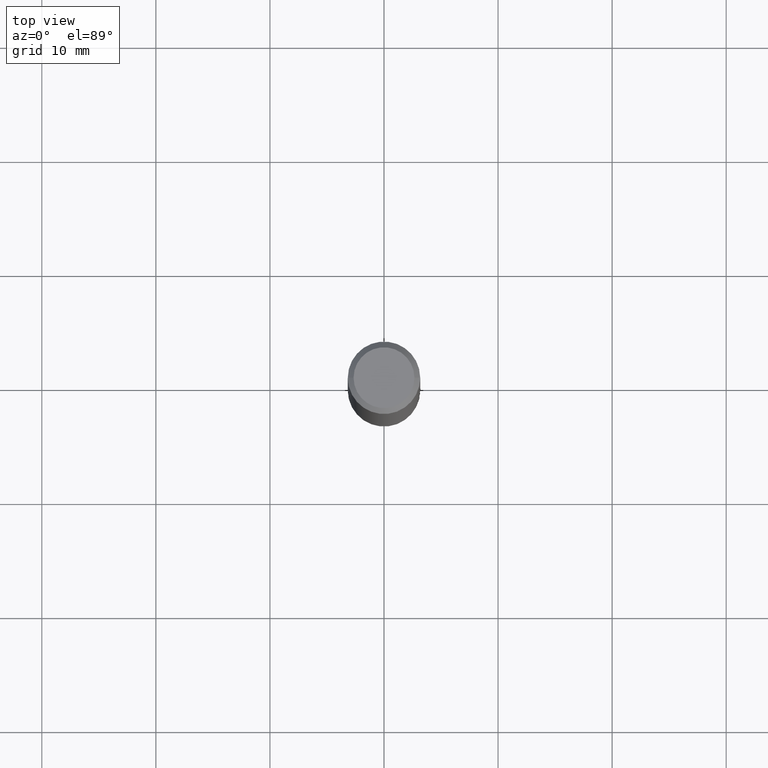
[diagram: clean part render]
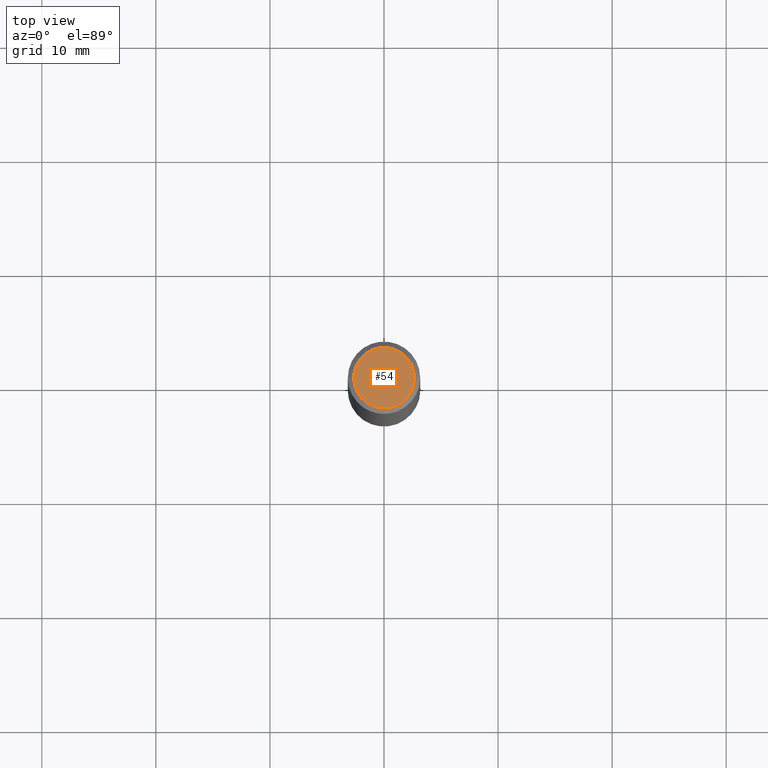
[diagram: same view with one face highlighted and labeled with its STEP entity id]
A machine part, top view. The second image highlights one B-rep face of the part: STEP entity #54.
In plain terms, the highlighted planar face has unit normal (0, -0, -1).
Its self-contained STEP definition (entity closure, byte-faithful):
#8 = DIRECTION ( 'NONE',  ( 1.000000000000000000, -6.982962677686265922E-15, 4.876176775795935793E-29 ) ) ;
#10 = CIRCLE ( 'NONE', #334, 0.1049999999999997324 ) ;
#15 = DIRECTION ( 'NONE',  ( 2.438088387897960049E-29, -3.491481338843145188E-15, -1.000000000000000000 ) ) ;
#23 = ORIENTED_EDGE ( 'NONE', *, *, #268, .T. ) ;
#32 = CARTESIAN_POINT ( 'NONE',  ( 0.000000000000000000, 0.000000000000000000, 0.000000000000000000 ) ) ;
#54 = ADVANCED_FACE ( 'NONE', ( #270 ), #345, .F. ) ;
#64 = VERTEX_POINT ( 'NONE', #340 ) ;
#68 = CIRCLE ( 'NONE', #266, 0.1049999999999997324 ) ;
#76 = ORIENTED_EDGE ( 'NONE', *, *, #263, .T. ) ;
#85 = DIRECTION ( 'NONE',  ( -2.445468806185136597E-29, 3.491481338843145583E-15, 1.000000000000000000 ) ) ;
#102 = CARTESIAN_POINT ( 'NONE',  ( 7.332110811570560522E-16, 0.1049999999999997324, -3.666055405785293573E-16 ) ) ;
#130 = DIRECTION ( 'NONE',  ( -1.000000000000000000, 6.982962677686265922E-15, -4.876176775795935793E-29 ) ) ;
#137 = VERTEX_POINT ( 'NONE', #147 ) ;
#146 = DIRECTION ( 'NONE',  ( 1.000000000000000000, -6.982962677686265922E-15, 4.876176775795935793E-29 ) ) ;
#147 = CARTESIAN_POINT ( 'NONE',  ( 0.1049999999999997324, -8.238720831321557908E-16, 5.444276250344137453E-30 ) ) ;
#232 = DIRECTION ( 'NONE',  ( -2.445468806185136597E-29, 3.491481338843145583E-15, 1.000000000000000000 ) ) ;
#255 = CARTESIAN_POINT ( 'NONE',  ( 0.000000000000000000, 0.000000000000000000, 0.000000000000000000 ) ) ;
#263 = EDGE_CURVE ( 'NONE', #64, #137, #10, .T. ) ;
#264 = AXIS2_PLACEMENT_3D ( 'NONE', #102, #15, #130 ) ;
#266 = AXIS2_PLACEMENT_3D ( 'NONE', #255, #232, #8 ) ;
#268 = EDGE_CURVE ( 'NONE', #137, #64, #68, .T. ) ;
#270 = FACE_OUTER_BOUND ( 'NONE', #295, .T. ) ;
#295 = EDGE_LOOP ( 'NONE', ( #76, #23 ) ) ;
#334 = AXIS2_PLACEMENT_3D ( 'NONE', #32, #85, #146 ) ;
#340 = CARTESIAN_POINT ( 'NONE',  ( -0.1049999999999997324, 7.681258945454871096E-16, -5.249639473182153965E-30 ) ) ;
#345 = PLANE ( 'NONE',  #264 ) ;